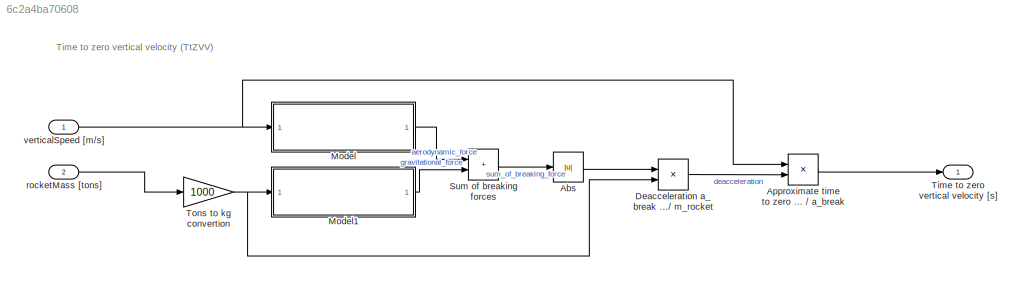
MODEL slx_6c2a4ba70608
KIND model
CONFIG AbsTol = auto
CONFIG EnableMultiTasking = off
CONFIG FixedStep = auto
CONFIG MaxStep = auto
CONFIG MinStep = auto
CONFIG RelTol = 1e-3
CONFIG SampleTimeConstraint = Unconstrained
CONFIG SolverName = FixedStepAuto
CONFIG StartTime = 0.0
CONFIG StopTime = 10.0
BLOCK [Abs] Abs
  SaturateOnIntegerOverflow = off
BLOCK [Product] Approximate time to zero vertical velocity t_zvv = verticalSpeed // a_break
  Inputs = */
  Ports = [2, 1]
BLOCK [Product] Deacceleration a_break = F_break // m_rocket
  Inputs = */
  Ports = [2, 1]
BLOCK [ModelReference] Model
  ModelNameDialog = aerodynamic_force.slx
  ModelReferenceVersion = 1.5
  Ports = [1, 1]
BLOCK [ModelReference] Model1
  ModelNameDialog = gravitational_force.slx
  ModelReferenceVersion = 1.5
  Ports = [1, 1]
BLOCK [Sum] Sum of breaking forces
  IconShape = rectangular
  Ports = [2, 1]
BLOCK [Outport] Time to zero vertical velocity [s]
BLOCK [Gain] Tons to kg convertion
  Gain = 1000
BLOCK [Inport] rocketMass [tons]
  Port = 2
BLOCK [Inport] verticalSpeed [m//s]
ANNOTATION (root): Time to zero vertical velocity (TtZVV)
LINE Abs:1 -> Deacceleration a_break = F_break // m_rocket:1
LINE Approximate time to zero vertical velocity t_zvv = verticalSpeed // a_break:1 -> Time to zero vertical velocity [s]:1
LINE Deacceleration a_break = F_break // m_rocket:1 -> Approximate time to zero vertical velocity t_zvv = verticalSpeed // a_break:2
LINE Model1:1 -> Sum of breaking forces:2
LINE Model:1 -> Sum of breaking forces:1
LINE Sum of breaking forces:1 -> Abs:1
NET Tons to kg convertion:1 -> Deacceleration a_break = F_break // m_rocket:2, Model1:1
LINE rocketMass [tons]:1 -> Tons to kg convertion:1
NET verticalSpeed [m//s]:1 -> Approximate time to zero vertical velocity t_zvv = verticalSpeed // a_break:1, Model:1
note: NET lines group one-source signal fan-out (src -> all destinations, sorted); 1:1 wires keep LINE
